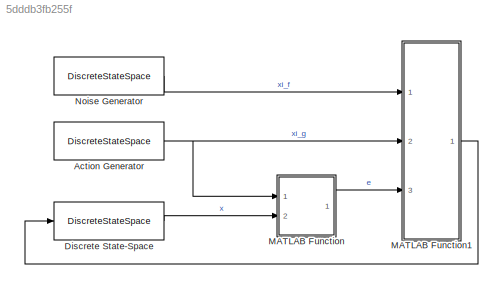
MODEL slx_5dddb3fb255f
KIND model
CONFIG AbsTol = auto
CONFIG EnableMultiTasking = off
CONFIG FixedStep = auto
CONFIG MaxStep = auto
CONFIG MinStep = auto
CONFIG RelTol = 1e-3
CONFIG SampleTimeConstraint = Unconstrained
CONFIG SolverName = VariableStepAuto
CONFIG StartTime = 0.0
CONFIG StopTime = 10.0
BLOCK [DiscreteStateSpace] Action Generator
  A = Gamma_g
  B = [0;0]
  C = eye(2)
  D = [0;0]
  InitialCondition = xi_g0
  SampleTime = T
BLOCK [DiscreteStateSpace] Discrete State-Space
  A = A_d
  B = B_d
  C = eye(2)
  D = [0;0]
  SampleTime = T
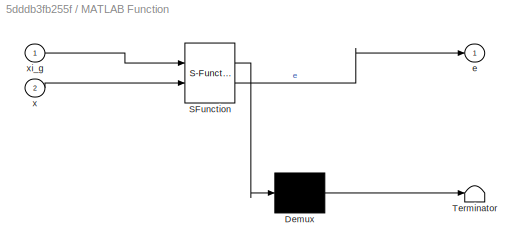
BLOCK [SubSystem] MATLAB Function
  ErrorFcn = Stateflow.Translate.translate
  PermitHierarchicalResolution = ExplicitOnly
  Ports = [2, 1]
  RequestExecContextInheritance = off
  SFBlockType = MATLAB Function
  TreatAsAtomicUnit = on
BLOCK [Demux] MATLAB Function/ Demux 
  Outputs = 1
  Ports = [1, 1]
BLOCK [S-Function] MATLAB Function/ SFunction 
  EnableBusSupport = on
  FunctionName = sf_sfun
  Parameters = M_g
  PortCounts = [2 2]
  Ports = [2, 2]
  SFcnIsStateOwnerBlock = off
  SFunctionDeploymentMode = off
  Tag = Stateflow S-Function 2
BLOCK [Terminator] MATLAB Function/ Terminator 
BLOCK [Outport] MATLAB Function/e
BLOCK [Inport] MATLAB Function/x
  Port = 2
BLOCK [Inport] MATLAB Function/xi_g
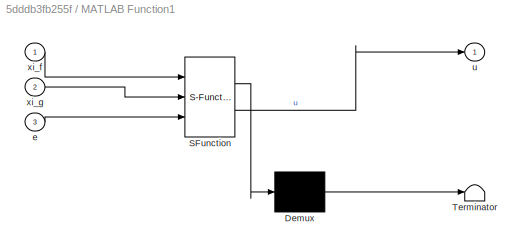
BLOCK [SubSystem] MATLAB Function1
  ErrorFcn = Stateflow.Translate.translate
  PermitHierarchicalResolution = ExplicitOnly
  Ports = [3, 1]
  RequestExecContextInheritance = off
  SFBlockType = MATLAB Function
  TreatAsAtomicUnit = on
BLOCK [Demux] MATLAB Function1/ Demux 
  Outputs = 1
  Ports = [1, 1]
BLOCK [S-Function] MATLAB Function1/ SFunction 
  EnableBusSupport = on
  FunctionName = sf_sfun
  Parameters = K_oc,L_f,L_g
  PortCounts = [3 2]
  Ports = [3, 2]
  SFcnIsStateOwnerBlock = off
  SFunctionDeploymentMode = off
  Tag = Stateflow S-Function 1
BLOCK [Terminator] MATLAB Function1/ Terminator 
BLOCK [Inport] MATLAB Function1/e
  Port = 3
BLOCK [Outport] MATLAB Function1/u
BLOCK [Inport] MATLAB Function1/xi_f
BLOCK [Inport] MATLAB Function1/xi_g
  Port = 2
BLOCK [DiscreteStateSpace] Noise Generator
  A = Gamma_f
  B = 0
  C = H_f
  D = 0
  InitialCondition = xi_f0
  SampleTime = T
NET Action Generator:1 -> MATLAB Function1:2, MATLAB Function:1
LINE Discrete State-Space:1 -> MATLAB Function:2
LINE MATLAB Function1:1 -> Discrete State-Space:1
LINE MATLAB Function:1 -> MATLAB Function1:3
LINE Noise Generator:1 -> MATLAB Function1:1
note: NET lines group one-source signal fan-out (src -> all destinations, sorted); 1:1 wires keep LINE
CHART MATLAB Function1 states=1 transitions=1
  STATE_LABEL 'eML_blk_kernel()'
  STATE_LABEL 'SCRIPT:\nfunction u = fcn(xi_f, xi_g, e, L_f, L_g, K_oc)\n\nu =  K_oc*e + L_g*xi_g - L_f*xi_f;\n'
CHART MATLAB Function states=1 transitions=1
  STATE_LABEL 'eML_blk_kernel()'
  STATE_LABEL 'SCRIPT:\nfunction e = fcn(xi_g, x, M_g)\n\ne = M_g*xi_g - x;\n'
CHART  states=0 transitions=0
CHART  states=0 transitions=0
